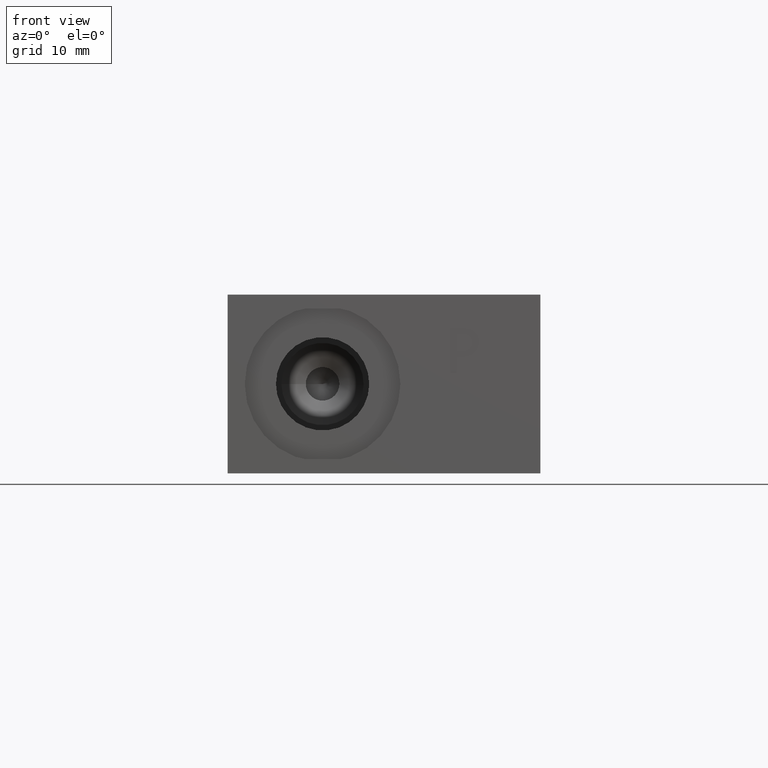
[diagram: clean part render]
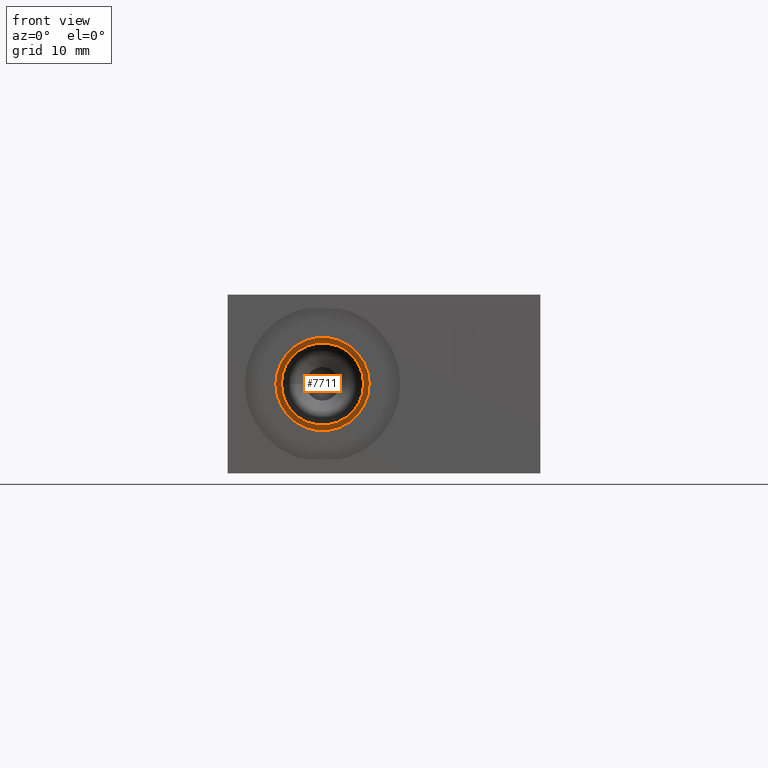
[diagram: same view with one face highlighted and labeled with its STEP entity id]
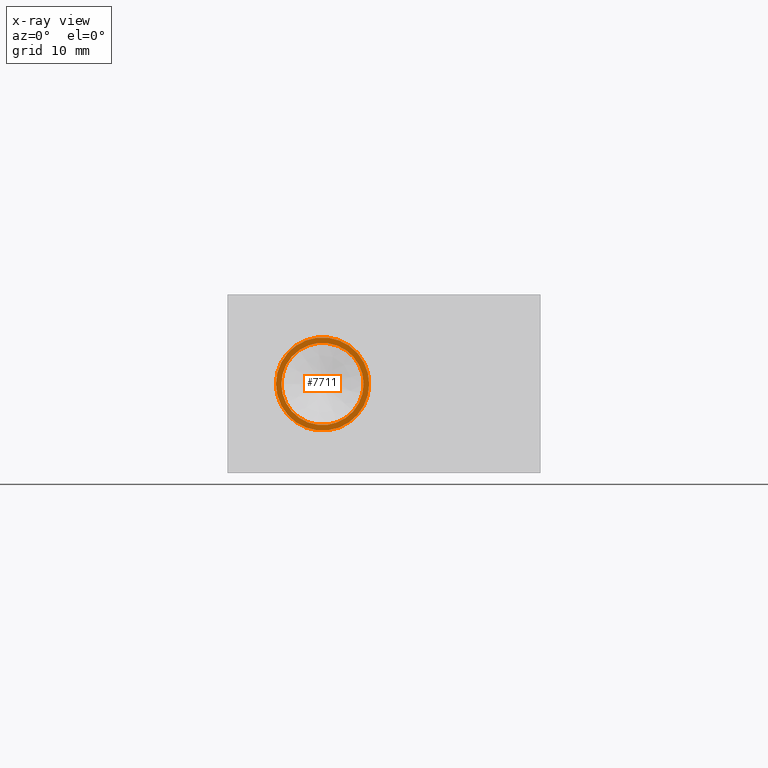
[diagram: x-ray of the same camera — body ghosted, the highlighted face saturated]
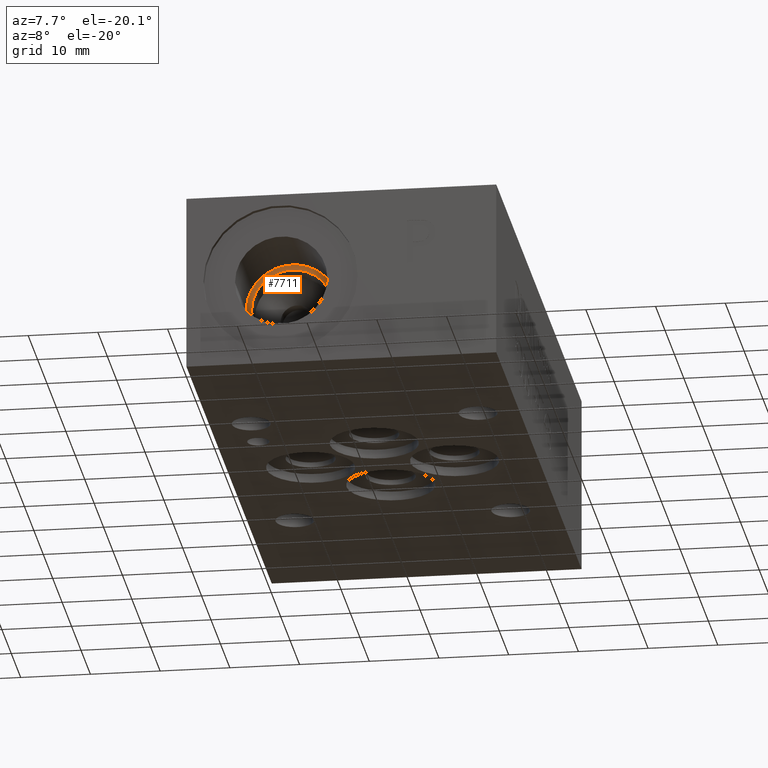
[diagram: same view with one face highlighted and labeled with its STEP entity id]
A machine part, front view. The second image highlights one B-rep face of the part: STEP entity #7711.
The next image is the same camera in x-ray: the body ghosted, the highlighted face saturated — about 0% of this face is hidden behind the body in this view.
A second angle (auxiliary view) of the same face is appended — the face is thin or edge-on in the first view.
In plain terms, the highlighted planar face has unit normal (0, 1, 0).
Its self-contained STEP definition (entity closure, byte-faithful):
#85=CIRCLE('',#8072,6.6294);
#86=CIRCLE('',#8074,5.842);
#145=FACE_BOUND('',#1234,.T.);
#796=FACE_OUTER_BOUND('',#1233,.T.);
#1233=EDGE_LOOP('',(#6615));
#1234=EDGE_LOOP('',(#6616));
#3581=VERTEX_POINT('',#12812);
#3582=VERTEX_POINT('',#12816);
#4607=EDGE_CURVE('',#3581,#3581,#85,.T.);
#4608=EDGE_CURVE('',#3582,#3582,#86,.T.);
#6615=ORIENTED_EDGE('',*,*,#4607,.F.);
#6616=ORIENTED_EDGE('',*,*,#4608,.T.);
#6995=PLANE('',#8073);
#7711=ADVANCED_FACE('',(#796,#145),#6995,.F.);
#8072=AXIS2_PLACEMENT_3D('',#12814,#9557,#9558);
#8073=AXIS2_PLACEMENT_3D('',#12815,#9559,#9560);
#8074=AXIS2_PLACEMENT_3D('',#12817,#9561,#9562);
#9557=DIRECTION('center_axis',(0.,1.,0.));
#9558=DIRECTION('ref_axis',(1.,0.,0.));
#9559=DIRECTION('center_axis',(0.,1.,0.));
#9560=DIRECTION('ref_axis',(0.,0.,1.));
#9561=DIRECTION('center_axis',(0.,1.,0.));
#9562=DIRECTION('ref_axis',(1.,0.,0.));
#12812=CARTESIAN_POINT('',(6.858,12.573,12.7));
#12814=CARTESIAN_POINT('Origin',(13.4874,12.573,12.7));
#12815=CARTESIAN_POINT('Origin',(19.3294,12.573,12.7));
#12816=CARTESIAN_POINT('',(7.6454,12.573,12.7));
#12817=CARTESIAN_POINT('Origin',(13.4874,12.573,12.7));